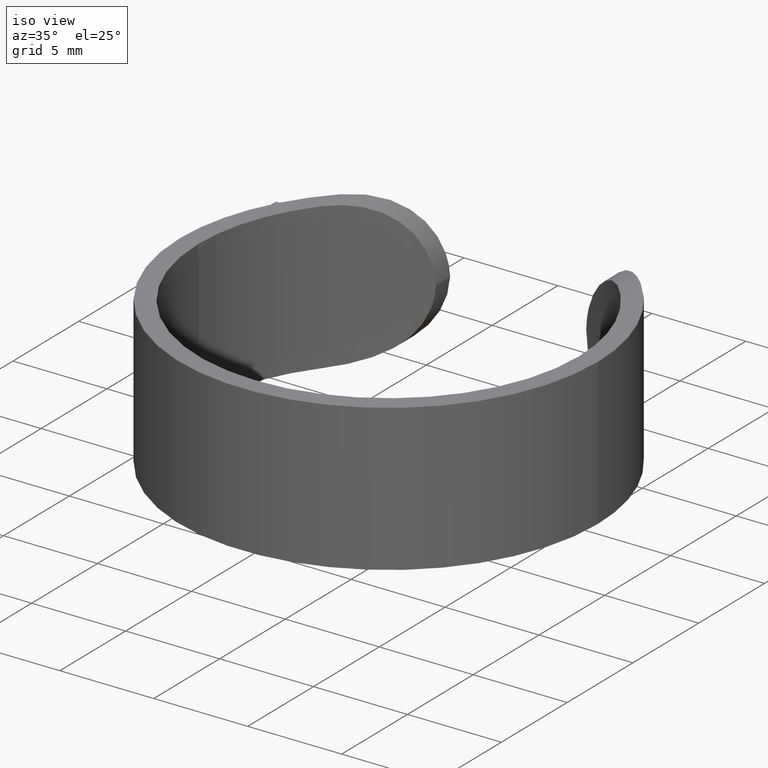
[diagram: clean part render]
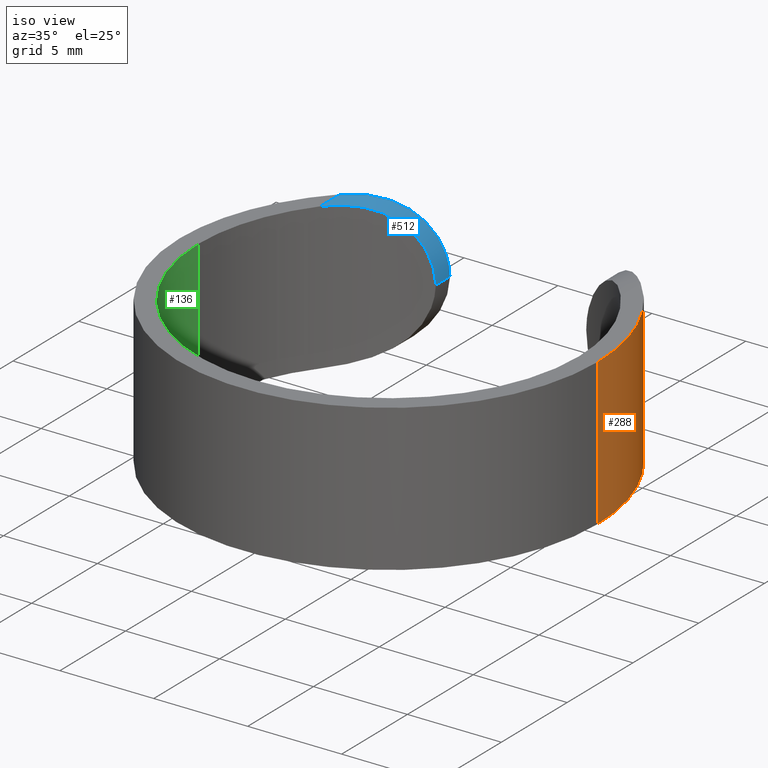
[diagram: same view with three faces highlighted in distinct colors, each labeled with its STEP entity id]
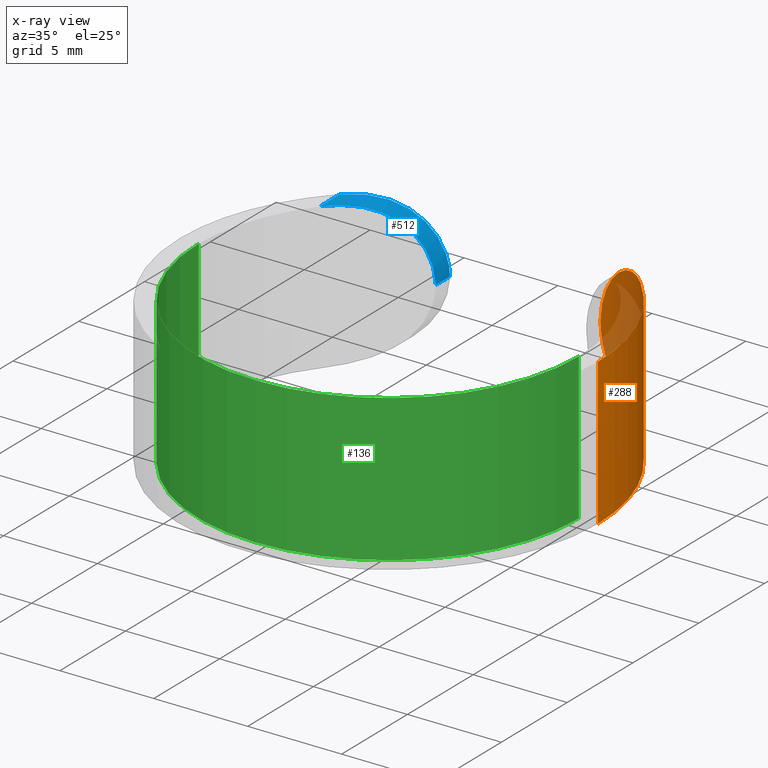
[diagram: x-ray of the same camera — body ghosted, the three highlighted faces saturated]
A machine part, iso view with three faces highlighted in distinct colors.
The next image is the same camera in x-ray (body ghosted, the three faces saturated) — at least one of them is partly hidden behind the body in this view.
Their STEP definitions:

[orange] entity #288 — the highlighted cylindrical surface (partial cylindrical patch) has radius 11.125 mm, axis along (-0, -0, -1).
#4 = CARTESIAN_POINT ( 'NONE',  ( 11.12500000000000000, 1.362419564051430300E-015, 7.799999999999999800 ) ) ;
#15 = CARTESIAN_POINT ( 'NONE',  ( 0.0000000000000000000, 0.0000000000000000000, 0.0000000000000000000 ) ) ;
#23 = CARTESIAN_POINT ( 'NONE',  ( 8.000000000000000000, 7.730823048033112600, 0.0000000000000000000 ) ) ;
#28 = CARTESIAN_POINT ( 'NONE',  ( 5.627252801659144800, 9.599729093109628400, 0.7685938398016604100 ) ) ;
#34 = CYLINDRICAL_SURFACE ( 'NONE', #483, 11.12500000000000000 ) ;
#36 = CARTESIAN_POINT ( 'NONE',  ( 4.008509415401781500, 10.37774242272197400, 4.190278046695688400 ) ) ;
#70 = CARTESIAN_POINT ( 'NONE',  ( 0.0000000000000000000, 0.0000000000000000000, 7.799999999999999800 ) ) ;
#72 = VERTEX_POINT ( 'NONE', #633 ) ;
#76 = CARTESIAN_POINT ( 'NONE',  ( 5.217142879510171300, 9.828641459004009200, 1.114238179207921700 ) ) ;
#80 = AXIS2_PLACEMENT_3D ( 'NONE', #15, #367, #498 ) ;
#90 = CARTESIAN_POINT ( 'NONE',  ( 5.026643687882589100, 9.926469475605966200, 6.490007754328753500 ) ) ;
#107 = ORIENTED_EDGE ( 'NONE', *, *, #575, .T. ) ;
#128 = CARTESIAN_POINT ( 'NONE',  ( 5.028166002111222900, 9.925670074801539400, 1.308577872979077600 ) ) ;
#129 = CARTESIAN_POINT ( 'NONE',  ( 5.840785774799425800, 9.472006847375073600, 0.6235521871070643900 ) ) ;
#134 = VERTEX_POINT ( 'NONE', #543 ) ;
#143 = CARTESIAN_POINT ( 'NONE',  ( 5.215562959815326100, 9.829430072311772900, 6.684043364736873500 ) ) ;
#167 = ORIENTED_EDGE ( 'NONE', *, *, #203, .T. ) ;
#175 = CIRCLE ( 'NONE', #80, 11.12500000000000000 ) ;
#177 = VERTEX_POINT ( 'NONE', #314 ) ;
#179 = DIRECTION ( 'NONE',  ( 0.0000000000000000000, 0.0000000000000000000, 1.000000000000000000 ) ) ;
#180 = CARTESIAN_POINT ( 'NONE',  ( 4.773003964334876900, 10.04952719540044200, 1.632430744411491400 ) ) ;
#189 = CARTESIAN_POINT ( 'NONE',  ( 4.183917640690046000, 10.30853513641075200, 5.032907303278858700 ) ) ;
#197 = CARTESIAN_POINT ( 'NONE',  ( 4.683710545691555500, 10.09280924912606600, 6.053711102248882100 ) ) ;
#203 = EDGE_CURVE ( 'NONE', #555, #177, #302, .T. ) ;
#231 = VERTEX_POINT ( 'NONE', #494 ) ;
#236 = CARTESIAN_POINT ( 'NONE',  ( 4.692642961623963800, 10.08719781645910500, 1.745839078344228600 ) ) ;
#238 = CARTESIAN_POINT ( 'NONE',  ( 7.596791848386501100, 8.148070369937434200, -7.623296525288703100E-018 ) ) ;
#239 = CARTESIAN_POINT ( 'NONE',  ( 4.001250195373561500, 10.38054053862432500, 3.900000000000077600 ) ) ;
#243 = CARTESIAN_POINT ( 'NONE',  ( 4.532237980768758900, 10.16084477143199500, 5.813559048247612700 ) ) ;
#253 = CARTESIAN_POINT ( 'NONE',  ( 6.276623606514001500, 9.189001011993763500, 7.418380919235120000 ) ) ;
#272 = EDGE_LOOP ( 'NONE', ( #547, #167, #310, #600, #107 ) ) ;
#280 = CARTESIAN_POINT ( 'NONE',  ( 0.0000000000000000000, 0.0000000000000000000, 7.799999999999999800 ) ) ;
#284 = CIRCLE ( 'NONE', #426, 11.12500000000000000 ) ;
#286 = EDGE_CURVE ( 'NONE', #177, #231, #175, .T. ) ;
#288 = ADVANCED_FACE ( 'NONE', ( #292 ), #34, .T. ) ;
#289 = CARTESIAN_POINT ( 'NONE',  ( 8.000000000000000000, 7.730823048033112600, 7.799999999999999800 ) ) ;
#292 = FACE_OUTER_BOUND ( 'NONE', #272, .T. ) ;
#293 = CARTESIAN_POINT ( 'NONE',  ( 11.12500000000000000, 1.362419564051430300E-015, 7.799999999999999800 ) ) ;
#298 = CARTESIAN_POINT ( 'NONE',  ( 4.001250195373561500, 10.38054053862432500, 3.900000000000077600 ) ) ;
#302 = LINE ( 'NONE', #4, #526 ) ;
#310 = ORIENTED_EDGE ( 'NONE', *, *, #286, .T. ) ;
#314 = CARTESIAN_POINT ( 'NONE',  ( 11.12500000000000000, 1.362419564051430300E-015, 0.0000000000000000000 ) ) ;
#317 = B_SPLINE_CURVE_WITH_KNOTS ( 'NONE', 3,
 ( #23, #238, #504, #457, #455, #129, #28, #76, #128, #180, #236, #559, #331, #372, #564, #507, #618, #239 ),
 .UNSPECIFIED., .F., .F.,
 ( 4, 2, 2, 2, 2, 2, 2, 2, 4 ),
 ( 0.0000000000000000000, 0.001714558512397795300, 0.002571837768596695800, 0.003429117024795596300, 0.004286396280994495500, 0.004715035909093946200, 0.005143675537193396000, 0.006000954793392295600, 0.006858234049591197000 ),
 .UNSPECIFIED. ) ;
#331 = CARTESIAN_POINT ( 'NONE',  ( 4.472305816383870300, 10.18669463662708800, 2.109100225319402400 ) ) ;
#367 = DIRECTION ( 'NONE',  ( 0.0000000000000000000, 0.0000000000000000000, 1.000000000000000000 ) ) ;
#372 = CARTESIAN_POINT ( 'NONE',  ( 4.284653511208659000, 10.26771333011783900, 2.491121836512083700 ) ) ;
#377 = EDGE_CURVE ( 'NONE', #555, #134, #284, .T. ) ;
#378 = CARTESIAN_POINT ( 'NONE',  ( 4.283673259212711100, 10.26811039051322700, 5.306223429147178400 ) ) ;
#426 = AXIS2_PLACEMENT_3D ( 'NONE', #280, #179, #458 ) ;
#442 = DIRECTION ( 'NONE',  ( -0.0000000000000000000, -0.0000000000000000000, -1.000000000000000000 ) ) ;
#447 = B_SPLINE_CURVE_WITH_KNOTS ( 'NONE', 3,
 ( #298, #36, #462, #189, #378, #243, #197, #90, #143, #521, #523, #253, #576, #623, #571, #289 ),
 .UNSPECIFIED., .F., .F.,
 ( 4, 2, 2, 2, 2, 2, 2, 4 ),
 ( 9.879956830789434300E-005, 0.0009611438505434354000, 0.001823488132778976500, 0.002685832415014517500, 0.003548176697250058600, 0.004410520979485599600, 0.005272865261721141100, 0.006997553826192222400 ),
 .UNSPECIFIED. ) ;
#455 = CARTESIAN_POINT ( 'NONE',  ( 6.278384356464432200, 9.187795277231764100, 0.3807949105595555000 ) ) ;
#457 = CARTESIAN_POINT ( 'NONE',  ( 6.504876999262162200, 9.029378816659051000, 0.2825672424975161900 ) ) ;
#458 = DIRECTION ( 'NONE',  ( 1.000000000000000000, 0.0000000000000000000, 0.0000000000000000000 ) ) ;
#462 = CARTESIAN_POINT ( 'NONE',  ( 4.046888289149073600, 10.36309599771422400, 4.474872427239577500 ) ) ;
#483 = AXIS2_PLACEMENT_3D ( 'NONE', #70, #603, #556 ) ;
#487 = EDGE_CURVE ( 'NONE', #231, #72, #317, .T. ) ;
#494 = CARTESIAN_POINT ( 'NONE',  ( 8.000000000000000000, 7.730823048033112600, 0.0000000000000000000 ) ) ;
#498 = DIRECTION ( 'NONE',  ( 1.000000000000000000, 0.0000000000000000000, 0.0000000000000000000 ) ) ;
#504 = CARTESIAN_POINT ( 'NONE',  ( 7.170007570011454100, 8.524467303416845000, 0.05919945420818639700 ) ) ;
#507 = CARTESIAN_POINT ( 'NONE',  ( 4.047803546566028000, 10.36274536119003100, 3.319158376748180000 ) ) ;
#521 = CARTESIAN_POINT ( 'NONE',  ( 5.622090501069651600, 9.602702272383906400, 7.027435851466609800 ) ) ;
#523 = CARTESIAN_POINT ( 'NONE',  ( 5.838803087984467200, 9.473231866475893900, 7.175194005950489300 ) ) ;
#526 = VECTOR ( 'NONE', #442, 1000.000000000000000 ) ;
#543 = CARTESIAN_POINT ( 'NONE',  ( 8.000000000000000000, 7.730823048033112600, 7.799999999999999800 ) ) ;
#547 = ORIENTED_EDGE ( 'NONE', *, *, #377, .F. ) ;
#555 = VERTEX_POINT ( 'NONE', #293 ) ;
#556 = DIRECTION ( 'NONE',  ( -1.000000000000000000, 0.0000000000000000000, 0.0000000000000000000 ) ) ;
#559 = CARTESIAN_POINT ( 'NONE',  ( 4.542234247356850200, 10.15581438368163200, 1.984135907392647200 ) ) ;
#564 = CARTESIAN_POINT ( 'NONE',  ( 4.186594352797738100, 10.30745519988227000, 2.758493055849410100 ) ) ;
#571 = CARTESIAN_POINT ( 'NONE',  ( 7.596839164062944700, 8.148021406792212300, 7.800000000000000700 ) ) ;
#575 = EDGE_CURVE ( 'NONE', #72, #134, #447, .T. ) ;
#576 = CARTESIAN_POINT ( 'NONE',  ( 6.501887589211069200, 9.031561767834935100, 7.516286287846984500 ) ) ;
#600 = ORIENTED_EDGE ( 'NONE', *, *, #487, .T. ) ;
#603 = DIRECTION ( 'NONE',  ( -0.0000000000000000000, -0.0000000000000000000, -1.000000000000000000 ) ) ;
#618 = CARTESIAN_POINT ( 'NONE',  ( 4.008529313447070300, 10.37773475288475200, 3.608926280256576900 ) ) ;
#623 = CARTESIAN_POINT ( 'NONE',  ( 7.169471451739840800, 8.525045739379107700, 7.740903526467290500 ) ) ;
#633 = CARTESIAN_POINT ( 'NONE',  ( 4.001250195373561500, 10.38054053862432500, 3.900000000000077600 ) ) ;

[blue] entity #512 — the highlighted cylindrical surface (partial cylindrical patch) has radius 4 mm, axis along (0, -1, 0).
#6 = VERTEX_POINT ( 'NONE', #142 ) ;
#8 = CARTESIAN_POINT ( 'NONE',  ( -4.001250195373557100, 10.38054053862446600, 3.900000000000076700 ) ) ;
#19 = FACE_OUTER_BOUND ( 'NONE', #615, .T. ) ;
#24 = EDGE_CURVE ( 'NONE', #573, #6, #172, .T. ) ;
#27 = DIRECTION ( 'NONE',  ( 1.000000000000000000, 8.033769701219899500E-016, 0.0000000000000000000 ) ) ;
#40 = AXIS2_PLACEMENT_3D ( 'NONE', #558, #565, #27 ) ;
#44 = CARTESIAN_POINT ( 'NONE',  ( -5.916901258061794300, 8.220814913419124200, 7.223746396989543700 ) ) ;
#50 = CARTESIAN_POINT ( 'NONE',  ( -4.001250195373557100, 10.38054053862446600, 3.900000000000076700 ) ) ;
#62 = LINE ( 'NONE', #116, #97 ) ;
#91 = CARTESIAN_POINT ( 'NONE',  ( -4.159431567750726100, 9.231270712618281100, 4.927905870786189800 ) ) ;
#94 = CARTESIAN_POINT ( 'NONE',  ( -5.840785774799472000, 9.472006847375045200, 7.176447812892963200 ) ) ;
#97 = VECTOR ( 'NONE', #362, 1000.000000000000000 ) ;
#116 = CARTESIAN_POINT ( 'NONE',  ( -8.000000000000000000, 10.38102234849727700, 7.799999999999999800 ) ) ;
#142 = CARTESIAN_POINT ( 'NONE',  ( -7.999999999999996400, 6.206095793653207500, 7.799999999999999800 ) ) ;
#145 = CARTESIAN_POINT ( 'NONE',  ( -7.008667805379441300, 7.312893272198249600, 7.681776929039928700 ) ) ;
#152 = VERTEX_POINT ( 'NONE', #8 ) ;
#153 = CARTESIAN_POINT ( 'NONE',  ( -6.578328444203196800, 7.702300130280032200, 7.545635010830095800 ) ) ;
#172 = B_SPLINE_CURVE_WITH_KNOTS ( 'NONE', 3,
 ( #626, #339, #379, #91, #296, #465, #520, #247, #640, #390, #206, #300, #44, #386, #153, #145, #585, #527, #256, #201 ),
 .UNSPECIFIED., .F., .F.,
 ( 4, 2, 2, 2, 2, 2, 2, 2, 2, 4 ),
 ( 9.880161927173211100E-005, 0.0009922241704492529000, 0.001438935446038013700, 0.001885646721626774500, 0.002779069272804298100, 0.003672491823981821500, 0.004565914375159345300, 0.005459336926336869600, 0.006352759477514394700, 0.007246182028691920700 ),
 .UNSPECIFIED. ) ;
#174 = EDGE_CURVE ( 'NONE', #6, #637, #62, .T. ) ;
#184 = ORIENTED_EDGE ( 'NONE', *, *, #631, .F. ) ;
#199 = CARTESIAN_POINT ( 'NONE',  ( -7.999999999999998200, 7.730823048033115300, 7.799999999999999800 ) ) ;
#201 = CARTESIAN_POINT ( 'NONE',  ( -7.999999999999996400, 6.206095793653207500, 7.799999999999999800 ) ) ;
#206 = CARTESIAN_POINT ( 'NONE',  ( -5.280293115881816500, 8.642706744832672400, 6.745452536255834600 ) ) ;
#214 = CARTESIAN_POINT ( 'NONE',  ( -4.047803546566052000, 10.36274536119001900, 4.480841623251954800 ) ) ;
#246 = CARTESIAN_POINT ( 'NONE',  ( -7.596791848386507300, 8.148070369937428800, 7.800000000000000700 ) ) ;
#247 = CARTESIAN_POINT ( 'NONE',  ( -4.565672505174214600, 9.038348224417907400, 5.871231290451265600 ) ) ;
#255 = CARTESIAN_POINT ( 'NONE',  ( -5.028166002111277100, 9.925670074801511000, 6.491422127020981300 ) ) ;
#256 = CARTESIAN_POINT ( 'NONE',  ( -7.815797301672327000, 6.443543238168709700, 7.799999999999999800 ) ) ;
#261 = CARTESIAN_POINT ( 'NONE',  ( -5.627252801659191800, 9.599729093109600000, 7.031406160198375100 ) ) ;
#269 = EDGE_CURVE ( 'NONE', #152, #573, #276, .T. ) ;
#273 = DIRECTION ( 'NONE',  ( 8.033769701219899500E-016, -1.000000000000000000, 0.0000000000000000000 ) ) ;
#276 = LINE ( 'NONE', #278, #607 ) ;
#277 = ORIENTED_EDGE ( 'NONE', *, *, #24, .F. ) ;
#278 = CARTESIAN_POINT ( 'NONE',  ( -4.001250195373557100, 8.293559071075245400, 3.899999999999999900 ) ) ;
#295 = CARTESIAN_POINT ( 'NONE',  ( -6.504876999262192400, 9.029378816659026100, 7.517432757502495700 ) ) ;
#296 = CARTESIAN_POINT ( 'NONE',  ( -4.204556946386481400, 9.210897228087516100, 5.071413838802312700 ) ) ;
#300 = CARTESIAN_POINT ( 'NONE',  ( -5.699572633629093100, 8.372141127620301000, 7.083371759473420700 ) ) ;
#303 = CARTESIAN_POINT ( 'NONE',  ( -5.217142879510224600, 9.828641459003979000, 6.685761820792132300 ) ) ;
#339 = CARTESIAN_POINT ( 'NONE',  ( -4.008770596894035700, 9.297604547682352600, 4.200722041107201900 ) ) ;
#353 = CARTESIAN_POINT ( 'NONE',  ( -4.008529313447085400, 10.37773475288474500, 4.191073719743564600 ) ) ;
#362 = DIRECTION ( 'NONE',  ( -8.033769701219899500E-016, 1.000000000000000000, 0.0000000000000000000 ) ) ;
#363 = B_SPLINE_CURVE_WITH_KNOTS ( 'NONE', 3,
 ( #199, #246, #582, #295, #628, #94, #261, #303, #255, #385, #584, #530, #476, #471, #641, #214, #353, #50 ),
 .UNSPECIFIED., .F., .F.,
 ( 4, 2, 2, 2, 2, 2, 2, 2, 4 ),
 ( 0.0000000000000000000, 0.001714558512397759300, 0.002571837768596640300, 0.003429117024795521700, 0.004286396280994402700, 0.004715035909093843800, 0.005143675537193285800, 0.006000954793392167300, 0.006858234049591049500 ),
 .UNSPECIFIED. ) ;
#379 = CARTESIAN_POINT ( 'NONE',  ( -4.049661632499908000, 9.280209340744386600, 4.495253138670401300 ) ) ;
#385 = CARTESIAN_POINT ( 'NONE',  ( -4.773003964334929300, 10.04952719540041500, 6.167569255588581700 ) ) ;
#386 = CARTESIAN_POINT ( 'NONE',  ( -6.355170468924957700, 7.886908560979496700, 7.454569136473801400 ) ) ;
#390 = CARTESIAN_POINT ( 'NONE',  ( -5.084183932607387200, 8.758337401897840400, 6.552753230554032800 ) ) ;
#449 = ORIENTED_EDGE ( 'NONE', *, *, #269, .F. ) ;
#465 = CARTESIAN_POINT ( 'NONE',  ( -4.308830892505965500, 9.162581688671776800, 5.348273794457178100 ) ) ;
#467 = CARTESIAN_POINT ( 'NONE',  ( -4.001250195373558000, 9.300839847778426900, 3.899999999999997200 ) ) ;
#471 = CARTESIAN_POINT ( 'NONE',  ( -4.284653511208702500, 10.26771333011781800, 5.308878163488022200 ) ) ;
#476 = CARTESIAN_POINT ( 'NONE',  ( -4.472305816383919100, 10.18669463662706500, 5.690899774680689300 ) ) ;
#512 = ADVANCED_FACE ( 'NONE', ( #19 ), #515, .T. ) ;
#515 = CYLINDRICAL_SURFACE ( 'NONE', #40, 4.000000000000000000 ) ;
#518 = CARTESIAN_POINT ( 'NONE',  ( -7.999999999999998200, 7.730823048033115300, 7.799999999999999800 ) ) ;
#520 = CARTESIAN_POINT ( 'NONE',  ( -4.368036621169348900, 9.134618264531310300, 5.482258337740738300 ) ) ;
#527 = CARTESIAN_POINT ( 'NONE',  ( -7.620885438308254000, 6.672744582655006700, 7.787204401882585000 ) ) ;
#530 = CARTESIAN_POINT ( 'NONE',  ( -4.542234247356901700, 10.15581438368161200, 5.815864092607438500 ) ) ;
#558 = CARTESIAN_POINT ( 'NONE',  ( -7.999999999999991100, -6.427015760975912500E-015, 3.799999999999999400 ) ) ;
#565 = DIRECTION ( 'NONE',  ( 8.033769701219899500E-016, -1.000000000000000000, 0.0000000000000000000 ) ) ;
#573 = VERTEX_POINT ( 'NONE', #467 ) ;
#582 = CARTESIAN_POINT ( 'NONE',  ( -7.170007570011465600, 8.524467303416830800, 7.740800545791817200 ) ) ;
#583 = ORIENTED_EDGE ( 'NONE', *, *, #174, .F. ) ;
#584 = CARTESIAN_POINT ( 'NONE',  ( -4.692642961624017100, 10.08719781645908000, 6.054160921655849000 ) ) ;
#585 = CARTESIAN_POINT ( 'NONE',  ( -7.217641228604095200, 7.106973351879469500, 7.728032783226035800 ) ) ;
#607 = VECTOR ( 'NONE', #273, 1000.000000000000000 ) ;
#615 = EDGE_LOOP ( 'NONE', ( #583, #277, #449, #184 ) ) ;
#626 = CARTESIAN_POINT ( 'NONE',  ( -4.001250195373558000, 9.300839847778426900, 3.899999999999997200 ) ) ;
#628 = CARTESIAN_POINT ( 'NONE',  ( -6.278384356464471200, 9.187795277231739300, 7.419205089440462000 ) ) ;
#631 = EDGE_CURVE ( 'NONE', #637, #152, #363, .T. ) ;
#637 = VERTEX_POINT ( 'NONE', #518 ) ;
#640 = CARTESIAN_POINT ( 'NONE',  ( -4.726582608043480100, 8.956384156310329900, 6.116111453541725100 ) ) ;
#641 = CARTESIAN_POINT ( 'NONE',  ( -4.186594352797775400, 10.30745519988225700, 5.041506944150704300 ) ) ;

[green] entity #136 — the highlighted cylindrical surface (partial cylindrical patch) has radius 10.125 mm, axis along (-0, -0, -1).
#5 = EDGE_CURVE ( 'NONE', #54, #55, #590, .T. ) ;
#39 = DIRECTION ( 'NONE',  ( -0.0000000000000000000, -0.0000000000000000000, -1.000000000000000000 ) ) ;
#54 = VERTEX_POINT ( 'NONE', #106 ) ;
#55 = VERTEX_POINT ( 'NONE', #355 ) ;
#56 = DIRECTION ( 'NONE',  ( -0.0000000000000000000, -0.0000000000000000000, -1.000000000000000000 ) ) ;
#57 = DIRECTION ( 'NONE',  ( -0.0000000000000000000, -0.0000000000000000000, -1.000000000000000000 ) ) ;
#59 = CARTESIAN_POINT ( 'NONE',  ( 0.0000000000000000000, 0.0000000000000000000, 7.799999999999999800 ) ) ;
#71 = AXIS2_PLACEMENT_3D ( 'NONE', #340, #39, #382 ) ;
#82 = EDGE_CURVE ( 'NONE', #354, #493, #334, .T. ) ;
#106 = CARTESIAN_POINT ( 'NONE',  ( 10.12499999999999800, 1.239954884136695000E-015, 7.799999999999999800 ) ) ;
#121 = ORIENTED_EDGE ( 'NONE', *, *, #82, .F. ) ;
#136 = ADVANCED_FACE ( 'NONE', ( #431 ), #561, .F. ) ;
#138 = CARTESIAN_POINT ( 'NONE',  ( 10.12499999999999800, 1.239954884136695000E-015, 7.799999999999999800 ) ) ;
#155 = EDGE_CURVE ( 'NONE', #54, #354, #176, .T. ) ;
#176 = CIRCLE ( 'NONE', #282, 10.12499999999999800 ) ;
#200 = ORIENTED_EDGE ( 'NONE', *, *, #586, .T. ) ;
#217 = DIRECTION ( 'NONE',  ( -1.000000000000000000, 0.0000000000000000000, 0.0000000000000000000 ) ) ;
#259 = ORIENTED_EDGE ( 'NONE', *, *, #5, .T. ) ;
#282 = AXIS2_PLACEMENT_3D ( 'NONE', #59, #57, #395 ) ;
#334 = LINE ( 'NONE', #532, #500 ) ;
#340 = CARTESIAN_POINT ( 'NONE',  ( 0.0000000000000000000, 0.0000000000000000000, 0.0000000000000000000 ) ) ;
#354 = VERTEX_POINT ( 'NONE', #550 ) ;
#355 = CARTESIAN_POINT ( 'NONE',  ( 10.12499999999999800, 1.239954884136695000E-015, 0.0000000000000000000 ) ) ;
#356 = CARTESIAN_POINT ( 'NONE',  ( 0.0000000000000000000, 0.0000000000000000000, 7.799999999999999800 ) ) ;
#373 = CARTESIAN_POINT ( 'NONE',  ( -10.12499999999999800, 0.0000000000000000000, 0.0000000000000000000 ) ) ;
#374 = AXIS2_PLACEMENT_3D ( 'NONE', #356, #56, #217 ) ;
#375 = EDGE_LOOP ( 'NONE', ( #608, #259, #200, #121 ) ) ;
#382 = DIRECTION ( 'NONE',  ( 1.000000000000000000, 0.0000000000000000000, 0.0000000000000000000 ) ) ;
#395 = DIRECTION ( 'NONE',  ( 1.000000000000000000, 0.0000000000000000000, 0.0000000000000000000 ) ) ;
#431 = FACE_OUTER_BOUND ( 'NONE', #375, .T. ) ;
#484 = VECTOR ( 'NONE', #511, 1000.000000000000000 ) ;
#492 = CIRCLE ( 'NONE', #71, 10.12499999999999800 ) ;
#493 = VERTEX_POINT ( 'NONE', #373 ) ;
#500 = VECTOR ( 'NONE', #578, 1000.000000000000000 ) ;
#511 = DIRECTION ( 'NONE',  ( -0.0000000000000000000, -0.0000000000000000000, -1.000000000000000000 ) ) ;
#532 = CARTESIAN_POINT ( 'NONE',  ( -10.12499999999999800, 0.0000000000000000000, 7.799999999999999800 ) ) ;
#550 = CARTESIAN_POINT ( 'NONE',  ( -10.12499999999999800, 0.0000000000000000000, 7.799999999999999800 ) ) ;
#561 = CYLINDRICAL_SURFACE ( 'NONE', #374, 10.12499999999999800 ) ;
#578 = DIRECTION ( 'NONE',  ( -0.0000000000000000000, -0.0000000000000000000, -1.000000000000000000 ) ) ;
#586 = EDGE_CURVE ( 'NONE', #55, #493, #492, .T. ) ;
#590 = LINE ( 'NONE', #138, #484 ) ;
#608 = ORIENTED_EDGE ( 'NONE', *, *, #155, .F. ) ;